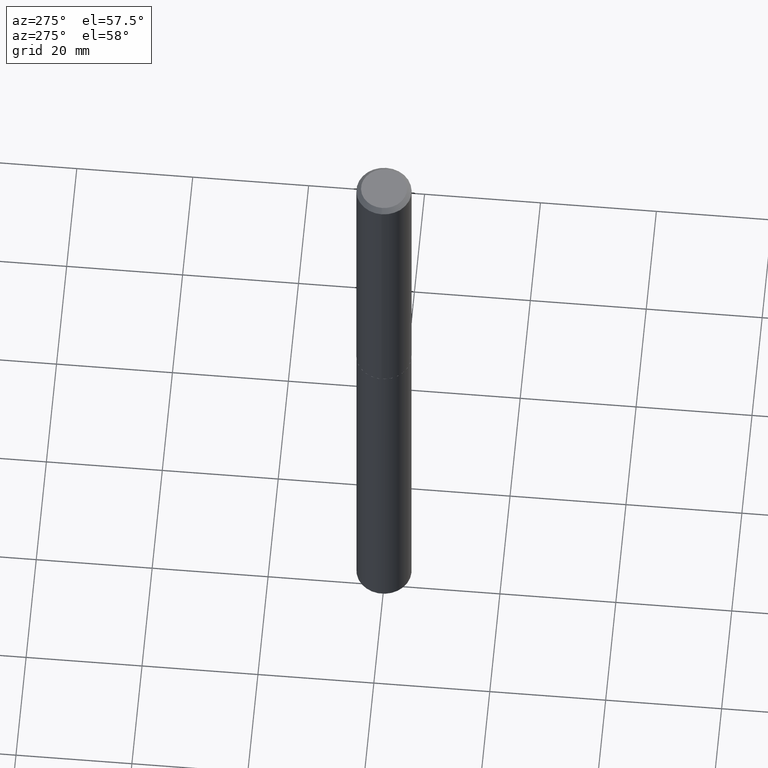
[diagram: clean part render]
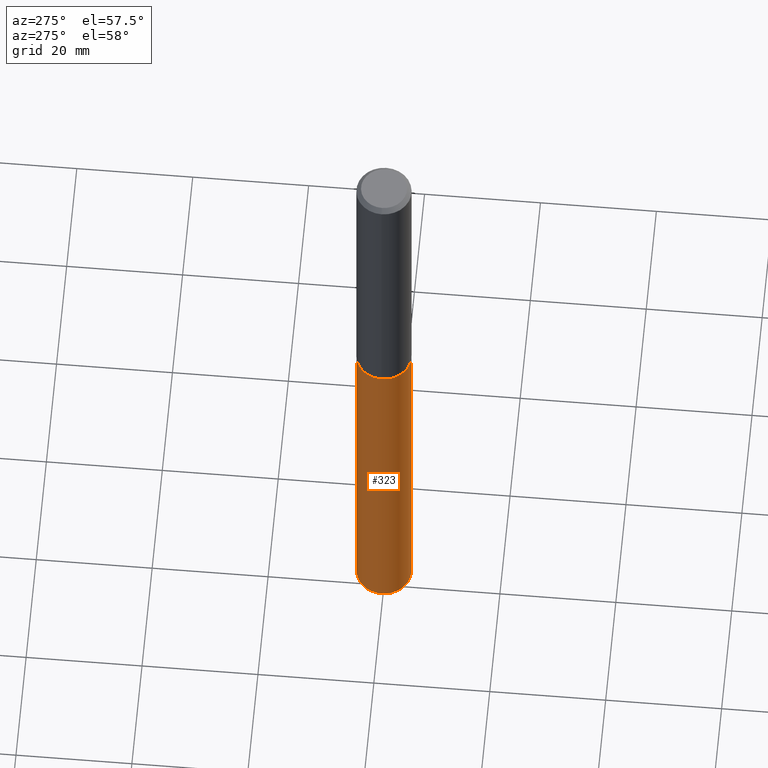
[diagram: same view with one face highlighted and labeled with its STEP entity id]
A machine part, auxiliary view. The second image highlights one B-rep face of the part: STEP entity #323.
In plain terms, the highlighted cylindrical surface (edge-blend (fillet) strip) has radius 4.7498 mm, axis along (-0, 0, 1).
Its self-contained STEP definition (entity closure, byte-faithful):
#6 = VERTEX_POINT ( 'NONE', #113 ) ;
#20 = CARTESIAN_POINT ( 'NONE',  ( -1.305814020727214264E-15, -0.1870000000000167917, -4.808939064241846140 ) ) ;
#27 = VERTEX_POINT ( 'NONE', #83 ) ;
#28 = LINE ( 'NONE', #379, #302 ) ;
#31 = DIRECTION ( 'NONE',  ( -6.982962677686266711E-15, -1.000000000000000000, 2.921762560068730595E-15 ) ) ;
#39 = AXIS2_PLACEMENT_3D ( 'NONE', #68, #275, #157 ) ;
#68 = CARTESIAN_POINT ( 'NONE',  ( 1.175993550173012053E-28, -1.679057157046176754E-14, -4.808939064241846140 ) ) ;
#70 = EDGE_CURVE ( 'NONE', #182, #196, #28, .T. ) ;
#71 = CARTESIAN_POINT ( 'NONE',  ( 5.148445477661568531E-29, -7.350615662666475594E-15, -2.105300000000000171 ) ) ;
#83 = CARTESIAN_POINT ( 'NONE',  ( 1.328714915871505674E-15, 0.1869999999999926721, -2.105300000000000615 ) ) ;
#113 = CARTESIAN_POINT ( 'NONE',  ( 1.328714915871504687E-15, 0.1869999999999832074, -4.808939064241847028 ) ) ;
#118 = VECTOR ( 'NONE', #206, 39.37007874015748143 ) ;
#138 = EDGE_CURVE ( 'NONE', #27, #196, #344, .T. ) ;
#146 = EDGE_CURVE ( 'NONE', #6, #27, #291, .T. ) ;
#157 = DIRECTION ( 'NONE',  ( -6.982962677686266711E-15, -1.000000000000000000, 2.921762560068730595E-15 ) ) ;
#162 = CIRCLE ( 'NONE', #39, 0.1869999999999999996 ) ;
#167 = ORIENTED_EDGE ( 'NONE', *, *, #234, .T. ) ;
#182 = VERTEX_POINT ( 'NONE', #20 ) ;
#186 = CYLINDRICAL_SURFACE ( 'NONE', #274, 0.1869999999999999996 ) ;
#192 = DIRECTION ( 'NONE',  ( -6.982962677686266711E-15, -1.000000000000000000, 2.921762560068730595E-15 ) ) ;
#196 = VERTEX_POINT ( 'NONE', #347 ) ;
#206 = DIRECTION ( 'NONE',  ( -2.445404089440668172E-29, 3.491574016904672432E-15, 1.000000000000000000 ) ) ;
#207 = CARTESIAN_POINT ( 'NONE',  ( 1.328714915871438620E-15, 0.1869999999999926721, -2.105300000000000615 ) ) ;
#208 = CARTESIAN_POINT ( 'NONE',  ( 5.148445477661568531E-29, -7.350615662666475594E-15, -2.105300000000000171 ) ) ;
#217 = ORIENTED_EDGE ( 'NONE', *, *, #146, .F. ) ;
#219 = DIRECTION ( 'NONE',  ( -2.445404089440668172E-29, 3.491574016904672827E-15, 1.000000000000000000 ) ) ;
#234 = EDGE_CURVE ( 'NONE', #6, #182, #162, .T. ) ;
#238 = ORIENTED_EDGE ( 'NONE', *, *, #138, .F. ) ;
#243 = DIRECTION ( 'NONE',  ( -2.445404089440668172E-29, 3.491574016904672827E-15, 1.000000000000000000 ) ) ;
#246 = FACE_OUTER_BOUND ( 'NONE', #258, .T. ) ;
#258 = EDGE_LOOP ( 'NONE', ( #217, #167, #387, #238 ) ) ;
#274 = AXIS2_PLACEMENT_3D ( 'NONE', #71, #219, #192 ) ;
#275 = DIRECTION ( 'NONE',  ( -2.445404089440668172E-29, 3.491574016904672827E-15, 1.000000000000000000 ) ) ;
#291 = LINE ( 'NONE', #207, #118 ) ;
#302 = VECTOR ( 'NONE', #319, 39.37007874015748143 ) ;
#319 = DIRECTION ( 'NONE',  ( -2.445404089440668172E-29, 3.491574016904672432E-15, 1.000000000000000000 ) ) ;
#323 = ADVANCED_FACE ( 'NONE', ( #246 ), #186, .T. ) ;
#344 = CIRCLE ( 'NONE', #389, 0.1869999999999999996 ) ;
#347 = CARTESIAN_POINT ( 'NONE',  ( -1.305814020727280331E-15, -0.1870000000000073548, -2.105299999999999727 ) ) ;
#379 = CARTESIAN_POINT ( 'NONE',  ( -1.305814020727280331E-15, -0.1870000000000073548, -2.105299999999999727 ) ) ;
#387 = ORIENTED_EDGE ( 'NONE', *, *, #70, .T. ) ;
#389 = AXIS2_PLACEMENT_3D ( 'NONE', #208, #243, #31 ) ;